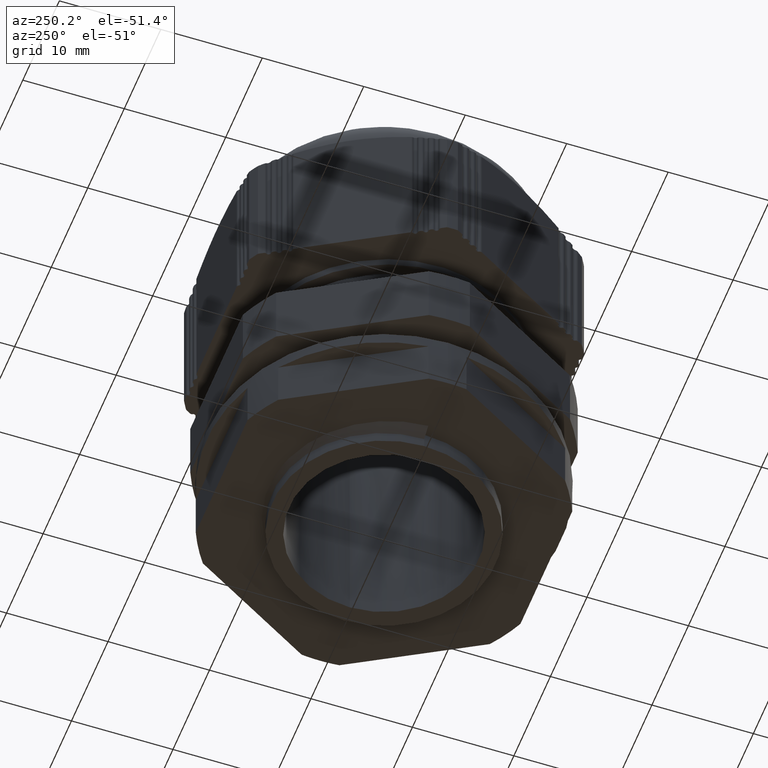
[diagram: clean part render]
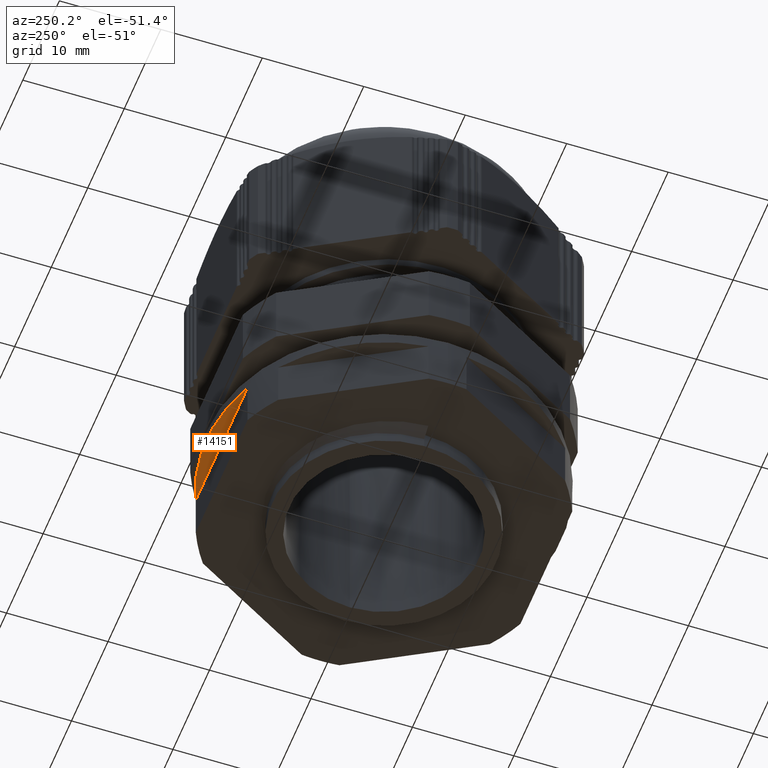
[diagram: same view with one face highlighted and labeled with its STEP entity id]
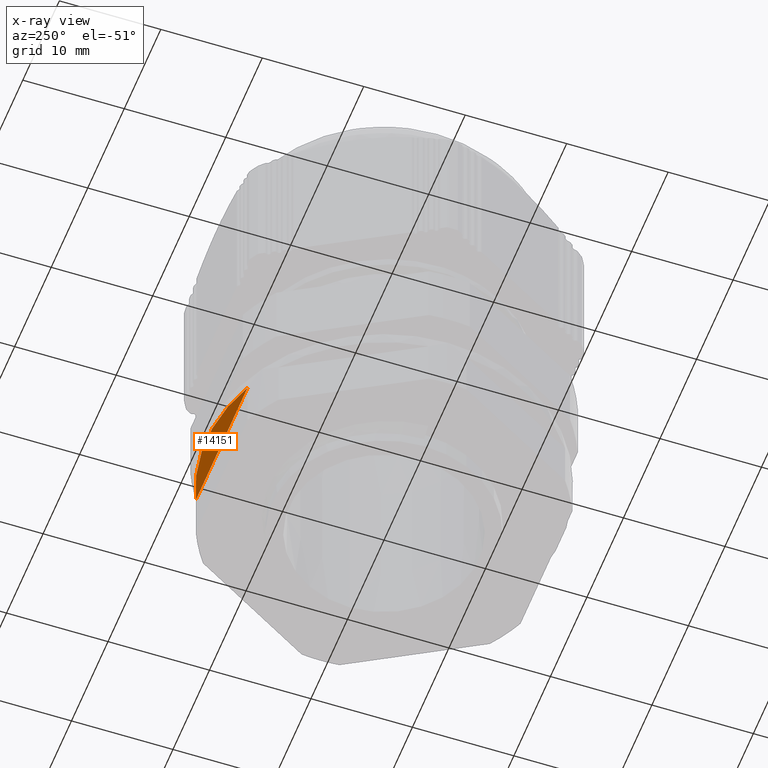
[diagram: x-ray of the same camera — body ghosted, the highlighted face saturated]
A machine part, auxiliary view. The second image highlights one B-rep face of the part: STEP entity #14151.
The next image is the same camera in x-ray: the body ghosted, the highlighted face saturated — about 0% of this face is hidden behind the body in this view.
In plain terms, the highlighted planar face has unit normal (0, 0, 1).
Its self-contained STEP definition (entity closure, byte-faithful):
#122 = PLANE ( 'NONE',  #3621 ) ;
#126 = DIRECTION ( 'NONE',  ( 1.000000000000000000, 0.0000000000000000000, -0.0000000000000000000 ) ) ;
#132 = DIRECTION ( 'NONE',  ( 0.0000000000000000000, 0.0000000000000000000, 1.000000000000000000 ) ) ;
#142 = FACE_OUTER_BOUND ( 'NONE', #11211, .T. ) ;
#146 = CARTESIAN_POINT ( 'NONE',  ( 0.0000000000000000000, 0.0000000000000000000, 6.483063884747838100 ) ) ;
#1374 = VERTEX_POINT ( 'NONE', #8346 ) ;
#1421 = VERTEX_POINT ( 'NONE', #8400 ) ;
#1831 = DIRECTION ( 'NONE',  ( 1.000000000000000000, 0.0000000000000000000, 0.0000000000000000000 ) ) ;
#1842 = CARTESIAN_POINT ( 'NONE',  ( 0.0000000000000000000, 0.0000000000000000000, 6.483063884747838100 ) ) ;
#1851 = DIRECTION ( 'NONE',  ( 0.0000000000000000000, 0.0000000000000000000, 1.000000000000000000 ) ) ;
#2629 = EDGE_CURVE ( 'NONE', #1421, #1374, #13004, .T. ) ;
#2883 = VECTOR ( 'NONE', #14596, 1000.000000000000000 ) ;
#3212 = ORIENTED_EDGE ( 'NONE', *, *, #2629, .F. ) ;
#3215 = ORIENTED_EDGE ( 'NONE', *, *, #13699, .T. ) ;
#3621 = AXIS2_PLACEMENT_3D ( 'NONE', #146, #132, #126 ) ;
#8346 = CARTESIAN_POINT ( 'NONE',  ( -7.088723439378890500, 16.00000000000001400, 6.483063884747838100 ) ) ;
#8400 = CARTESIAN_POINT ( 'NONE',  ( 7.088723439378888700, 16.00000000000001400, 6.483063884747838100 ) ) ;
#11211 = EDGE_LOOP ( 'NONE', ( #3212, #3215 ) ) ;
#13004 = CIRCLE ( 'NONE', #13014, 17.50000000000000400 ) ;
#13014 = AXIS2_PLACEMENT_3D ( 'NONE', #1842, #1851, #1831 ) ;
#13699 = EDGE_CURVE ( 'NONE', #1421, #1374, #14588, .T. ) ;
#14151 = ADVANCED_FACE ( 'NONE', ( #142 ), #122, .F. ) ;
#14588 = LINE ( 'NONE', #14590, #2883 ) ;
#14590 = CARTESIAN_POINT ( 'NONE',  ( 9.237604307034001000, 16.00000000000001400, 6.483063884747838100 ) ) ;
#14596 = DIRECTION ( 'NONE',  ( -1.000000000000000000, -0.0000000000000000000, -0.0000000000000000000 ) ) ;